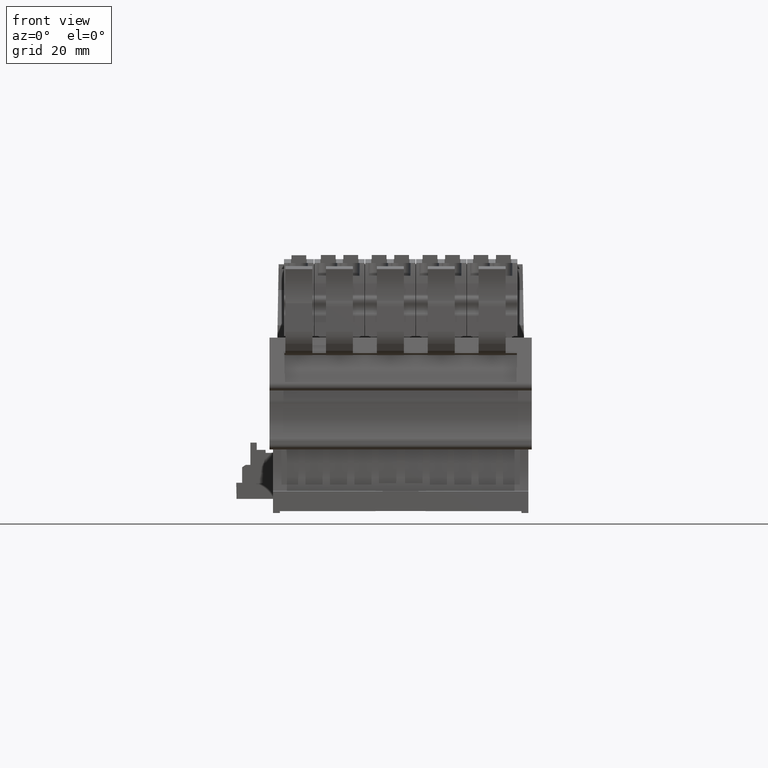
[diagram: clean part render]
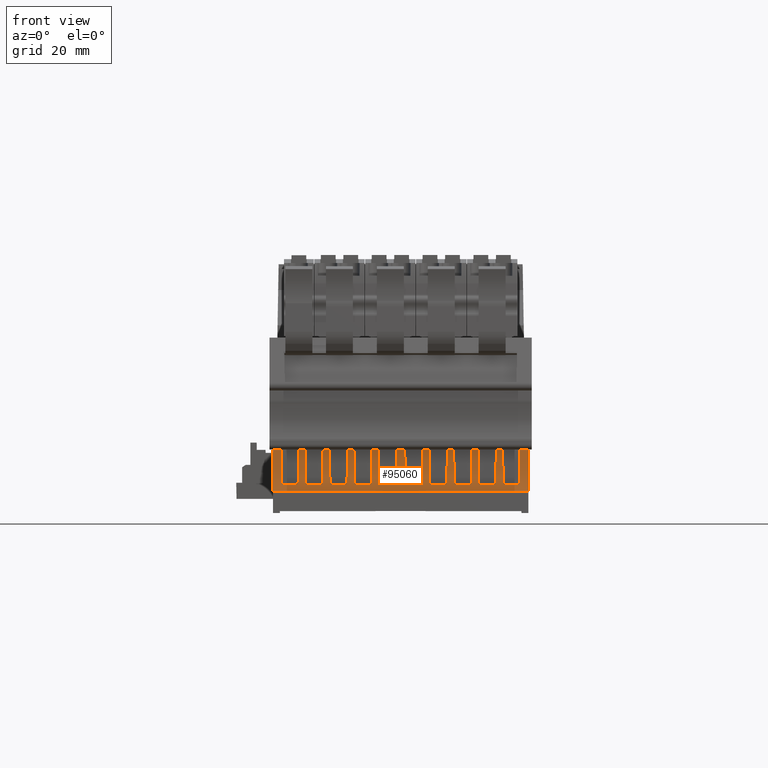
[diagram: same view with one face highlighted and labeled with its STEP entity id]
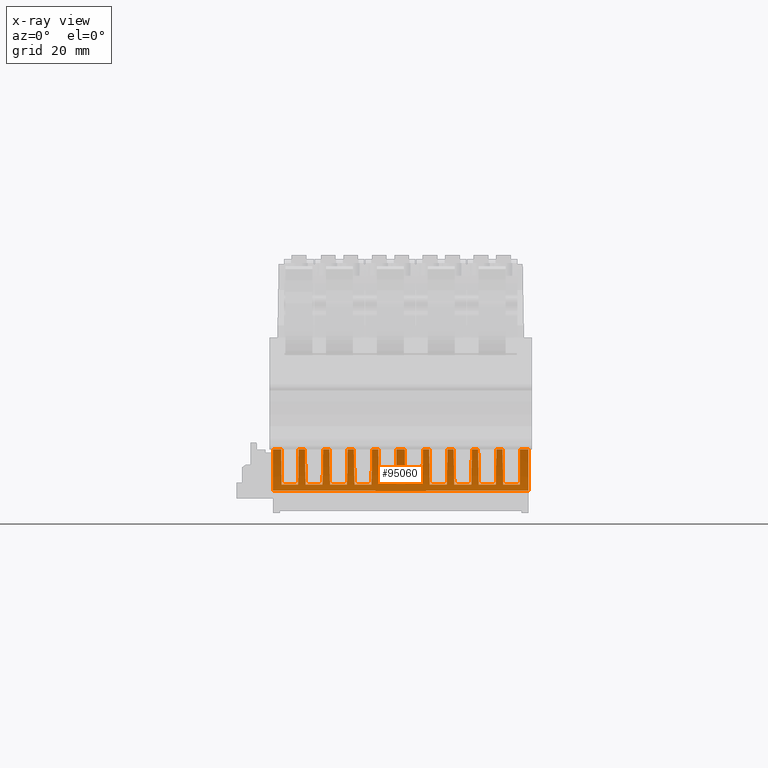
[diagram: x-ray of the same camera — body ghosted, the highlighted face saturated]
A machine part, front view. The second image highlights one B-rep face of the part: STEP entity #95060.
The next image is the same camera in x-ray: the body ghosted, the highlighted face saturated — about 0% of this face is hidden behind the body in this view.
In plain terms, the highlighted cylindrical surface (partial cylindrical patch) has radius 32 mm, axis along (1, 0, -0).
Its self-contained STEP definition (entity closure, byte-faithful):
#15140=CARTESIAN_POINT('',(-31.0056815975214,-4.78212808001097,
-81.0600023784956));
#15150=DIRECTION('',(4.13215179592955E-11,5.08621313383629E-12,1.));
#15160=VECTOR('',#15150,1.);
#15170=LINE('',#15140,#15160);
#15180=CARTESIAN_POINT('',(-31.0056815955159,-4.78212807977886,
-32.5367951448605));
#15190=VERTEX_POINT('',#15180);
#15200=CARTESIAN_POINT('',(-31.0056815953722,-4.78212807976404,
-29.0632048334256));
#15210=VERTEX_POINT('',#15200);
#15220=EDGE_CURVE('',#15190,#15210,#15170,.T.);
#89690=CARTESIAN_POINT('',(-31.0056815975214,-4.78212808001097,
-81.0600023784956));
#89700=DIRECTION('',(4.13215179592955E-11,5.08621313383629E-12,1.));
#89710=VECTOR('',#89700,1.);
#89720=LINE('',#89690,#89710);
#89730=CARTESIAN_POINT('',(-31.0056815957224,-4.78212807980713,
-37.5367951448609));
#89740=VERTEX_POINT('',#89730);
#89750=CARTESIAN_POINT('',(-31.0056815955789,-4.78212807978947,
-34.0632048567918));
#89760=VERTEX_POINT('',#89750);
#89770=EDGE_CURVE('',#89740,#89760,#89720,.T.);
#90160=CARTESIAN_POINT('',(-62.9898838756714,-5.78751581891615,
-34.0125851707667));
#90170=DIRECTION('',(0.00212691324287215,-0.0173223188554032,
0.999847695156382));
#90180=DIRECTION('',(-0.121850775704579,0.992394982841873,
0.0174524064378229));
#90190=AXIS2_PLACEMENT_3D('',#90160,#90170,#90180);
#90200=ELLIPSE('',#90190,32.0048744974053,32.);
#90210=CARTESIAN_POINT('',(-32.0405045112049,2.34488339377194,
-33.93752837186));
#90220=VERTEX_POINT('',#90210);
#90230=EDGE_CURVE('',#89760,#90220,#90200,.T.);
#90550=CARTESIAN_POINT('',(-62.9898838756125,-5.7875158189089,
-32.5874148354169));
#90560=DIRECTION('',(0.00212691338394611,-0.0173223188370466,
-0.9998476951564));
#90570=DIRECTION('',(-0.12185078852938,0.992394981267203,
-0.0174524064367958));
#90580=AXIS2_PLACEMENT_3D('',#90550,#90560,#90570);
#90590=ELLIPSE('',#90580,32.0048744974047,32.);
#90600=CARTESIAN_POINT('',(-32.0405045111522,2.34488339377843,
-32.6624716298074));
#90610=VERTEX_POINT('',#90600);
#90620=EDGE_CURVE('',#90610,#15190,#90590,.T.);
#91410=CARTESIAN_POINT('',(-62.9898838752573,-5.78751581886517,
-23.9899015353331));
#91420=DIRECTION('',(0.00106349718151837,-0.00866148922265242,
0.999961923064169));
#91430=DIRECTION('',(0.121864701707156,-0.992508358683199,
-0.00872653549865132));
#91440=AXIS2_PLACEMENT_3D('',#91410,#91420,#91430);
#91450=ELLIPSE('',#91440,32.0012185083437,32.);
#91460=CARTESIAN_POINT('',(-31.0165580327374,-4.48121012417101,
-24.0125913885144));
#91470=VERTEX_POINT('',#91460);
#91480=CARTESIAN_POINT('',(-32.0405045107923,2.34488339382273,
-23.9523759960644));
#91490=VERTEX_POINT('',#91480);
#91500=EDGE_CURVE('',#91470,#91490,#91450,.T.);
#91750=CARTESIAN_POINT('',(-62.9898838776155,-5.78751581915544,
-81.0600023771688));
#91760=DIRECTION('',(4.13215179592955E-11,5.08621313383629E-12,1.));
#91770=DIRECTION('',(-0.992546151641236,-0.121869343405852,
4.16333670855158E-11));
#91780=AXIS2_PLACEMENT_3D('',#91750,#91760,#91770);
#91790=CYLINDRICAL_SURFACE('',#91780,32.);
#91800=CARTESIAN_POINT('',(-62.9898838754357,-5.78751581888714,
-28.3080336530961));
#91810=DIRECTION('',(0.00106349716742528,-0.00866148921969684,
-0.99996192306421));
#91820=DIRECTION('',(-0.121864709627986,0.992508357710684,
-0.00872653549400025));
#91830=AXIS2_PLACEMENT_3D('',#91800,#91810,#91820);
#91840=ELLIPSE('',#91830,32.0012185083424,32.);
#91850=CARTESIAN_POINT('',(-30.9910717034457,-6.06323230697384,
-28.2716135048333));
#91860=VERTEX_POINT('',#91850);
#91870=CARTESIAN_POINT('',(-30.9911606698539,-6.07337104912647,
-28.2715257795027));
#91880=VERTEX_POINT('',#91870);
#91890=EDGE_CURVE('',#91860,#91880,#91840,.T.);
#91900=ORIENTED_EDGE('',*,*,#91890,.T.);
#91910=CARTESIAN_POINT('',(-30.9910717056271,-6.06323230725382,
-81.0600023784897));
#91920=DIRECTION('',(4.13215179592955E-11,5.08621313383629E-12,1.));
#91930=VECTOR('',#91920,1.);
#91940=LINE('',#91910,#91930);
#91950=CARTESIAN_POINT('',(-30.9910717043105,-6.06323230708028,
-49.1999999994663));
#91960=VERTEX_POINT('',#91950);
#91970=EDGE_CURVE('',#91960,#91860,#91940,.T.);
#91980=ORIENTED_EDGE('',*,*,#91970,.T.);
#91990=CARTESIAN_POINT('',(-62.989883876299,-5.7875158189934,
-49.199999999585));
#92000=DIRECTION('',(3.71422913355508E-12,4.00157385418018E-13,-1.));
#92010=DIRECTION('',(1.,0.,3.71422913355508E-12));
#92020=AXIS2_PLACEMENT_3D('',#91990,#92000,#92010);
#92030=CIRCLE('',#92020,32.);
#92040=CARTESIAN_POINT('',(-32.0405045118355,2.34488339369431,
-49.1999999994668));
#92050=VERTEX_POINT('',#92040);
#92060=EDGE_CURVE('',#92050,#91960,#92030,.T.);
#92070=ORIENTED_EDGE('',*,*,#92060,.T.);
#92080=CARTESIAN_POINT('',(-32.0405045131514,2.34488339352985,
-81.0600023784891));
#92090=DIRECTION('',(4.13215179592955E-11,5.08621313383629E-12,1.));
#92100=VECTOR('',#92090,1.);
#92110=LINE('',#92080,#92100);
#92120=CARTESIAN_POINT('',(-32.0405045117656,2.34488339370292,
-47.5083678764582));
#92130=VERTEX_POINT('',#92120);
#92140=EDGE_CURVE('',#92050,#92130,#92110,.T.);
#92150=ORIENTED_EDGE('',*,*,#92140,.F.);
#92160=CARTESIAN_POINT('',(-62.9898838762275,-5.7875158189846,
-47.4708423359889));
#92170=DIRECTION('',(-0.00106349714379756,0.00866148922672503,
0.999961923064174));
#92180=DIRECTION('',(-0.12186470686323,0.992508358050117,
-0.00872653549809655));
#92190=AXIS2_PLACEMENT_3D('',#92160,#92170,#92180);
#92200=ELLIPSE('',#92190,32.0012185083435,32.);
#92210=CARTESIAN_POINT('',(-31.0056815961317,-4.78212807986116,
-47.4455344196405));
#92220=VERTEX_POINT('',#92210);
#92230=EDGE_CURVE('',#92220,#92130,#92200,.T.);
#92240=ORIENTED_EDGE('',*,*,#92230,.T.);
#92250=CARTESIAN_POINT('',(-31.0056815975207,-4.78212808003174,
-81.0600023784956));
#92260=DIRECTION('',(4.13215179592955E-11,5.08621313383629E-12,1.));
#92270=VECTOR('',#92260,1.);
#92280=LINE('',#92250,#92270);
#92290=CARTESIAN_POINT('',(-31.0056815959919,-4.78212807984422,
-44.0632048330995));
#92300=VERTEX_POINT('',#92290);
#92310=EDGE_CURVE('',#92220,#92300,#92280,.T.);
#92320=ORIENTED_EDGE('',*,*,#92310,.F.);
#92330=CARTESIAN_POINT('',(-62.9898838760846,-5.78751581896701,
-44.0125851431205));
#92340=DIRECTION('',(-0.00212691336597967,0.0173223188397682,
-0.999847695156391));
#92350=DIRECTION('',(-0.12185078276106,0.992394981975455,
0.0174524064373075));
#92360=AXIS2_PLACEMENT_3D('',#92330,#92340,#92350);
#92370=ELLIPSE('',#92360,32.004874497405,32.);
#92380=CARTESIAN_POINT('',(-32.0405045116181,2.34488339372108,
-43.9375283481516));
#92390=VERTEX_POINT('',#92380);
#92400=EDGE_CURVE('',#92390,#92300,#92370,.T.);
#92410=ORIENTED_EDGE('',*,*,#92400,.T.);
#92420=CARTESIAN_POINT('',(-32.0405045115654,2.34488339372756,
-42.6624716060973));
#92430=VERTEX_POINT('',#92420);
#92440=EDGE_CURVE('',#92390,#92430,#92110,.T.);
#92450=ORIENTED_EDGE('',*,*,#92440,.F.);
#92460=CARTESIAN_POINT('',(-62.9898838760257,-5.78751581895977,
-42.5874148077689));
#92470=DIRECTION('',(-0.00212691326083858,0.0173223188526816,
0.999847695156391));
#92480=DIRECTION('',(-0.12185078147299,0.99239498213361,
-0.0174524064373112));
#92490=AXIS2_PLACEMENT_3D('',#92460,#92470,#92480);
#92500=ELLIPSE('',#92490,32.004874497405,32.);
#92510=CARTESIAN_POINT('',(-31.005681595929,-4.78212807983257,
-42.5367951211664));
#92520=VERTEX_POINT('',#92510);
#92530=EDGE_CURVE('',#92520,#92430,#92500,.T.);
#92540=ORIENTED_EDGE('',*,*,#92530,.T.);
#92550=CARTESIAN_POINT('',(-31.0056815975214,-4.78212808001097,
-81.0600023784956));
#92560=DIRECTION('',(4.13215179592955E-11,5.08621313383629E-12,1.));
#92570=VECTOR('',#92560,1.);
#92580=LINE('',#92550,#92570);
#92590=CARTESIAN_POINT('',(-31.0056815957856,-4.78212807981008,
-39.0632048567914));
#92600=VERTEX_POINT('',#92590);
#92610=EDGE_CURVE('',#92520,#92600,#92580,.T.);
#92620=ORIENTED_EDGE('',*,*,#92610,.F.);
#92630=CARTESIAN_POINT('',(-62.989883875878,-5.78751581894158,
-39.0125851707664));
#92640=DIRECTION('',(0.00212691324287215,-0.0173223188554032,
0.999847695156382));
#92650=DIRECTION('',(-0.121850775704579,0.992394982841873,
0.0174524064378229));
#92660=AXIS2_PLACEMENT_3D('',#92630,#92640,#92650);
#92670=ELLIPSE('',#92660,32.0048744974053,32.);
#92680=CARTESIAN_POINT('',(-32.0405045114115,2.34488339374651,
-38.9375283718597));
#92690=VERTEX_POINT('',#92680);
#92700=EDGE_CURVE('',#92600,#92690,#92670,.T.);
#92710=ORIENTED_EDGE('',*,*,#92700,.F.);
#92720=CARTESIAN_POINT('',(-32.0405045113588,2.34488339375299,
-37.6624716298077));
#92730=VERTEX_POINT('',#92720);
#92740=EDGE_CURVE('',#92690,#92730,#92110,.T.);
#92750=ORIENTED_EDGE('',*,*,#92740,.F.);
#92760=CARTESIAN_POINT('',(-62.9898838758191,-5.78751581893433,
-37.5874148354172));
#92770=DIRECTION('',(0.00212691338394611,-0.0173223188370466,
-0.9998476951564));
#92780=DIRECTION('',(-0.12185078852938,0.992394981267203,
-0.0174524064367958));
#92790=AXIS2_PLACEMENT_3D('',#92760,#92770,#92780);
#92800=ELLIPSE('',#92790,32.0048744974047,32.);
#92810=EDGE_CURVE('',#92730,#89740,#92800,.T.);
#92820=ORIENTED_EDGE('',*,*,#92810,.F.);
#92830=ORIENTED_EDGE('',*,*,#89770,.F.);
#92840=ORIENTED_EDGE('',*,*,#90230,.F.);
#92850=EDGE_CURVE('',#90220,#90610,#92110,.T.);
#92860=ORIENTED_EDGE('',*,*,#92850,.F.);
#92870=ORIENTED_EDGE('',*,*,#90620,.F.);
#92880=ORIENTED_EDGE('',*,*,#15220,.F.);
#92890=CARTESIAN_POINT('',(-62.9898838754648,-5.78751581889072,
-29.0125851438079));
#92900=DIRECTION('',(-0.00212691335474765,0.0173223188416946,
-0.999847695156382));
#92910=DIRECTION('',(-0.121850782113742,0.992394982054926,
0.0174524064378507));
#92920=AXIS2_PLACEMENT_3D('',#92890,#92900,#92910);
#92930=ELLIPSE('',#92920,32.0048744974054,32.);
#92940=CARTESIAN_POINT('',(-32.0405045109983,2.34488339379737,
-28.9375283484757));
#92950=VERTEX_POINT('',#92940);
#92960=EDGE_CURVE('',#92950,#15210,#92930,.T.);
#92970=ORIENTED_EDGE('',*,*,#92960,.T.);
#92980=CARTESIAN_POINT('',(-32.0405045109456,2.34488339380386,
-27.6624716027192));
#92990=VERTEX_POINT('',#92980);
#93000=EDGE_CURVE('',#92950,#92990,#92110,.T.);
#93010=ORIENTED_EDGE('',*,*,#93000,.F.);
#93020=CARTESIAN_POINT('',(-62.989883875406,-5.78751581888347,
-27.5874148043931));
#93030=DIRECTION('',(0.00212691326076219,-0.0173223188521065,
-0.999847695156401));
#93040=DIRECTION('',(-0.121850781472647,0.992394982133663,
-0.017452406436731));
#93050=AXIS2_PLACEMENT_3D('',#93020,#93030,#93040);
#93060=ELLIPSE('',#93050,32.0048744974047,32.);
#93070=CARTESIAN_POINT('',(-31.0165580328833,-4.48121012418768,
-27.5420316453549));
#93080=VERTEX_POINT('',#93070);
#93090=EDGE_CURVE('',#92990,#93080,#93060,.T.);
#93100=ORIENTED_EDGE('',*,*,#93090,.F.);
#93110=CARTESIAN_POINT('',(-31.0165580350954,-4.48121012444431,
-81.0600023784967));
#93120=DIRECTION('',(4.13215179592955E-11,5.08621313383629E-12,1.));
#93130=VECTOR('',#93120,1.);
#93140=LINE('',#93110,#93130);
#93150=EDGE_CURVE('',#93080,#91470,#93140,.T.);
#93160=ORIENTED_EDGE('',*,*,#93150,.F.);
#93170=ORIENTED_EDGE('',*,*,#91500,.F.);
#93180=CARTESIAN_POINT('',(-32.0405045107218,2.3448833938314,
-22.247623981893));
#93190=VERTEX_POINT('',#93180);
#93200=EDGE_CURVE('',#91490,#93190,#92110,.T.);
#93210=ORIENTED_EDGE('',*,*,#93200,.F.);
#93220=CARTESIAN_POINT('',(-62.9898838751837,-5.78751581885612,
-22.2100984432028));
#93230=DIRECTION('',(-0.00106349719948162,0.00866148921988788,
0.999961923064174));
#93240=DIRECTION('',(0.121864713244019,-0.992508357266655,
0.00872653549809655));
#93250=AXIS2_PLACEMENT_3D('',#93220,#93230,#93240);
#93260=ELLIPSE('',#93250,32.0012185083435,32.);
#93270=CARTESIAN_POINT('',(-31.016558032662,-4.48121012416172,
-22.1874085894435));
#93280=VERTEX_POINT('',#93270);
#93290=EDGE_CURVE('',#93280,#93190,#93260,.T.);
#93300=ORIENTED_EDGE('',*,*,#93290,.T.);
#93310=CARTESIAN_POINT('',(-31.0165580350954,-4.48121012444431,
-81.0600023784967));
#93320=DIRECTION('',(4.13215179592955E-11,5.08621313383629E-12,1.));
#93330=VECTOR('',#93320,1.);
#93340=LINE('',#93310,#93330);
#93350=CARTESIAN_POINT('',(-31.0165580325161,-4.48121012414377,
-18.6579683326035));
#93360=VERTEX_POINT('',#93350);
#93370=EDGE_CURVE('',#93280,#93360,#93340,.T.);
#93380=ORIENTED_EDGE('',*,*,#93370,.F.);
#93390=CARTESIAN_POINT('',(-62.9898838750351,-5.78751581883782,
-18.6125851741433));
#93400=DIRECTION('',(-0.00212691324279575,0.0173223188548281,
-0.999847695156392));
#93410=DIRECTION('',(-0.121850775704237,0.992394982841925,
0.0174524064372428));
#93420=AXIS2_PLACEMENT_3D('',#93390,#93400,#93410);
#93430=ELLIPSE('',#93420,32.004874497405,32.);
#93440=CARTESIAN_POINT('',(-32.0405045105685,2.34488339385027,
-18.5375283752389));
#93450=VERTEX_POINT('',#93440);
#93460=EDGE_CURVE('',#93450,#93360,#93430,.T.);
#93470=ORIENTED_EDGE('',*,*,#93460,.T.);
#93480=CARTESIAN_POINT('',(-32.0405045105158,2.34488339385675,
-17.2624716294826));
#93490=VERTEX_POINT('',#93480);
#93500=EDGE_CURVE('',#93450,#93490,#92110,.T.);
#93510=ORIENTED_EDGE('',*,*,#93500,.F.);
#93520=CARTESIAN_POINT('',(-62.9898838749761,-5.78751581883057,
-17.1874148347287));
#93530=DIRECTION('',(0.00212691337271409,-0.0173223188389731,
-0.99984769515639));
#93540=DIRECTION('',(-0.121850787882152,0.992394981346664,
-0.017452406437339));
#93550=AXIS2_PLACEMENT_3D('',#93520,#93530,#93540);
#93560=ELLIPSE('',#93550,32.0048744974051,32.);
#93570=CARTESIAN_POINT('',(-31.0056815948791,-4.78212807971203,
-17.1367951445333));
#93580=VERTEX_POINT('',#93570);
#93590=EDGE_CURVE('',#93490,#93580,#93560,.T.);
#93600=ORIENTED_EDGE('',*,*,#93590,.F.);
#93610=CARTESIAN_POINT('',(-31.0056815975216,-4.7821280800034,
-81.0600023784956));
#93620=DIRECTION('',(4.13215179592955E-11,5.08621313383629E-12,1.));
#93630=VECTOR('',#93620,1.);
#93640=LINE('',#93610,#93630);
#93650=CARTESIAN_POINT('',(-31.0056815947357,-4.78212807969121,
-13.6632048567923));
#93660=VERTEX_POINT('',#93650);
#93670=EDGE_CURVE('',#93580,#93660,#93640,.T.);
#93680=ORIENTED_EDGE('',*,*,#93670,.F.);
#93690=CARTESIAN_POINT('',(-62.9898838748285,-5.78751581881239,
-13.6125851707671));
#93700=DIRECTION('',(0.00212691324287215,-0.0173223188554032,
0.999847695156382));
#93710=DIRECTION('',(-0.121850775704579,0.992394982841873,
0.0174524064378229));
#93720=AXIS2_PLACEMENT_3D('',#93690,#93700,#93710);
#93730=ELLIPSE('',#93720,32.0048744974053,32.);
#93740=CARTESIAN_POINT('',(-32.0405045103619,2.3448833938757,
-13.5375283718604));
#93750=VERTEX_POINT('',#93740);
#93760=EDGE_CURVE('',#93660,#93750,#93730,.T.);
#93770=ORIENTED_EDGE('',*,*,#93760,.F.);
#93780=CARTESIAN_POINT('',(-32.0405045103092,2.34488339388218,
-12.2624716298071));
#93790=VERTEX_POINT('',#93780);
#93800=EDGE_CURVE('',#93750,#93790,#92110,.T.);
#93810=ORIENTED_EDGE('',*,*,#93800,.F.);
#93820=CARTESIAN_POINT('',(-62.9898838747695,-5.78751581880514,
-12.1874148354165));
#93830=DIRECTION('',(0.00212691338394611,-0.0173223188370466,
-0.9998476951564));
#93840=DIRECTION('',(-0.12185078852938,0.992394981267203,
-0.0174524064367958));
#93850=AXIS2_PLACEMENT_3D('',#93820,#93830,#93840);
#93860=ELLIPSE('',#93850,32.0048744974047,32.);
#93870=CARTESIAN_POINT('',(-31.0056815946726,-4.78212807968344,
-12.13679514486));
#93880=VERTEX_POINT('',#93870);
#93890=EDGE_CURVE('',#93790,#93880,#93860,.T.);
#93900=ORIENTED_EDGE('',*,*,#93890,.F.);
#93910=CARTESIAN_POINT('',(-31.0056815975216,-4.7821280800034,
-81.0600023784956));
#93920=DIRECTION('',(4.13215179592955E-11,5.08621313383629E-12,1.));
#93930=VECTOR('',#93920,1.);
#93940=LINE('',#93910,#93930);
#93950=CARTESIAN_POINT('',(-31.0056815945291,-4.78212807966578,
-8.66320485679265));
#93960=VERTEX_POINT('',#93950);
#93970=EDGE_CURVE('',#93880,#93960,#93940,.T.);
#93980=ORIENTED_EDGE('',*,*,#93970,.F.);
#93990=CARTESIAN_POINT('',(-62.9898838746219,-5.78751581878696,
-8.61258517076743));
#94000=DIRECTION('',(0.00212691324287215,-0.0173223188554032,
0.999847695156382));
#94010=DIRECTION('',(-0.121850775704579,0.992394982841873,
0.0174524064378229));
#94020=AXIS2_PLACEMENT_3D('',#93990,#94000,#94010);
#94030=ELLIPSE('',#94020,32.0048744974053,32.);
#94040=CARTESIAN_POINT('',(-32.0405045101553,2.34488339390113,
-8.53752837186076));
#94050=VERTEX_POINT('',#94040);
#94060=EDGE_CURVE('',#93960,#94050,#94030,.T.);
#94070=ORIENTED_EDGE('',*,*,#94060,.F.);
#94080=CARTESIAN_POINT('',(-32.0405045101026,2.34488339390762,
-7.26247162980674));
#94090=VERTEX_POINT('',#94080);
#94100=EDGE_CURVE('',#94050,#94090,#92110,.T.);
#94110=ORIENTED_EDGE('',*,*,#94100,.F.);
#94120=CARTESIAN_POINT('',(-62.9898838745629,-5.78751581877971,
-7.18741483541619));
#94130=DIRECTION('',(0.00212691338394611,-0.0173223188370466,
-0.9998476951564));
#94140=DIRECTION('',(-0.12185078852938,0.992394981267203,
-0.0174524064367958));
#94150=AXIS2_PLACEMENT_3D('',#94120,#94130,#94140);
#94160=ELLIPSE('',#94150,32.0048744974047,32.);
#94170=CARTESIAN_POINT('',(-31.005681594466,-4.78212807965801,
-7.13679514485968));
#94180=VERTEX_POINT('',#94170);
#94190=EDGE_CURVE('',#94090,#94180,#94160,.T.);
#94200=ORIENTED_EDGE('',*,*,#94190,.F.);
#94210=CARTESIAN_POINT('',(-31.0056815975216,-4.7821280800034,
-81.0600023784956));
#94220=DIRECTION('',(4.13215179592955E-11,5.08621313383629E-12,1.));
#94230=VECTOR('',#94220,1.);
#94240=LINE('',#94210,#94230);
#94250=CARTESIAN_POINT('',(-31.0056815943225,-4.78212807964034,
-3.66320485679282));
#94260=VERTEX_POINT('',#94250);
#94270=EDGE_CURVE('',#94180,#94260,#94240,.T.);
#94280=ORIENTED_EDGE('',*,*,#94270,.F.);
#94290=CARTESIAN_POINT('',(-62.9898838744153,-5.78751581876153,
-3.61258517076741));
#94300=DIRECTION('',(0.00212691324287215,-0.0173223188554032,
0.999847695156382));
#94310=DIRECTION('',(-0.121850775704579,0.992394982841873,
0.0174524064378229));
#94320=AXIS2_PLACEMENT_3D('',#94290,#94300,#94310);
#94330=ELLIPSE('',#94320,32.0048744974053,32.);
#94340=CARTESIAN_POINT('',(-32.0405045099487,2.34488339392656,
-3.53752837186073));
#94350=VERTEX_POINT('',#94340);
#94360=EDGE_CURVE('',#94260,#94350,#94330,.T.);
#94370=ORIENTED_EDGE('',*,*,#94360,.F.);
#94380=CARTESIAN_POINT('',(-32.040504509896,2.34488339393305,
-2.26247162980675));
#94390=VERTEX_POINT('',#94380);
#94400=EDGE_CURVE('',#94350,#94390,#92110,.T.);
#94410=ORIENTED_EDGE('',*,*,#94400,.F.);
#94420=CARTESIAN_POINT('',(-62.9898838743563,-5.78751581875428,
-2.18741483541621));
#94430=DIRECTION('',(0.00212691338394611,-0.0173223188370466,
-0.9998476951564));
#94440=DIRECTION('',(-0.12185078852938,0.992394981267203,
-0.0174524064367958));
#94450=AXIS2_PLACEMENT_3D('',#94420,#94430,#94440);
#94460=ELLIPSE('',#94450,32.0048744974047,32.);
#94470=CARTESIAN_POINT('',(-31.0056815942595,-4.78212807962944,
-2.13679514485956));
#94480=VERTEX_POINT('',#94470);
#94490=EDGE_CURVE('',#94390,#94480,#94460,.T.);
#94500=ORIENTED_EDGE('',*,*,#94490,.F.);
#94510=CARTESIAN_POINT('',(-31.0056815975217,-4.78212808000027,
-81.0600023784956));
#94520=DIRECTION('',(4.13215179592955E-11,5.08621313383629E-12,1.));
#94530=VECTOR('',#94520,1.);
#94540=LINE('',#94510,#94530);
#94550=CARTESIAN_POINT('',(-31.0056815941198,-4.78212807961224,
1.2455344430351));
#94560=VERTEX_POINT('',#94550);
#94570=EDGE_CURVE('',#94480,#94560,#94540,.T.);
#94580=ORIENTED_EDGE('',*,*,#94570,.F.);
#94590=CARTESIAN_POINT('',(-62.9898838742135,-5.78751581873669,
1.27084235987335));
#94600=DIRECTION('',(-0.00106349715910504,0.00866148922641938,
-0.99996192306416));
#94610=DIRECTION('',(-0.121864699125227,0.992508359000211,
0.0087265354996587));
#94620=AXIS2_PLACEMENT_3D('',#94590,#94600,#94610);
#94630=ELLIPSE('',#94620,32.0012185083439,32.);
#94640=CARTESIAN_POINT('',(-32.0405045097485,2.34488339395121,
1.30836789986639));
#94650=VERTEX_POINT('',#94640);
#94660=EDGE_CURVE('',#94650,#94560,#94630,.T.);
#94670=ORIENTED_EDGE('',*,*,#94660,.T.);
#94680=CARTESIAN_POINT('',(-32.0405045096786,2.34488339395981,
3.00000000010895));
#94690=VERTEX_POINT('',#94680);
#94700=EDGE_CURVE('',#94650,#94690,#92110,.T.);
#94710=ORIENTED_EDGE('',*,*,#94700,.F.);
#94720=CARTESIAN_POINT('',(-62.989883874142,-5.7875158187279,
2.99999999999075));
#94730=DIRECTION('',(-3.71422913355508E-12,-4.00157385418018E-13,1.));
#94740=DIRECTION('',(-1.,0.,-3.71422913355508E-12));
#94750=AXIS2_PLACEMENT_3D('',#94720,#94730,#94740);
#94760=CIRCLE('',#94750,32.);
#94770=CARTESIAN_POINT('',(-30.9910717021536,-6.06323230681478,
3.00000000010949));
#94780=VERTEX_POINT('',#94770);
#94790=EDGE_CURVE('',#94780,#94690,#94760,.T.);
#94800=ORIENTED_EDGE('',*,*,#94790,.T.);
#94810=CARTESIAN_POINT('',(-30.9910717056269,-6.0632323072308,
-81.0600023784897));
#94820=DIRECTION('',(4.13215179592955E-11,5.08621313383629E-12,1.));
#94830=VECTOR('',#94820,1.);
#94840=LINE('',#94810,#94830);
#94850=CARTESIAN_POINT('',(-30.9910717030183,-6.06323230692123,
-17.9283864495942));
#94860=VERTEX_POINT('',#94850);
#94870=EDGE_CURVE('',#94860,#94780,#94840,.T.);
#94880=ORIENTED_EDGE('',*,*,#94870,.T.);
#94890=CARTESIAN_POINT('',(-62.9898838750053,-5.78751581883416,
-17.8919663027137));
#94900=DIRECTION('',(0.00106349712410605,-0.00866148923382883,
0.999961923064133));
#94910=DIRECTION('',(-0.121864695071575,0.992508359497909,
0.00872653550274762));
#94920=AXIS2_PLACEMENT_3D('',#94890,#94900,#94910);
#94930=ELLIPSE('',#94920,32.0012185083448,32.);
#94940=CARTESIAN_POINT('',(-30.9911606694265,-6.07337104907386,
-17.928474174925));
#94950=VERTEX_POINT('',#94940);
#94960=EDGE_CURVE('',#94950,#94860,#94930,.T.);
#94970=ORIENTED_EDGE('',*,*,#94960,.T.);
#94980=CARTESIAN_POINT('',(-30.9911606720351,-6.07337104939061,
-81.0600023784896));
#94990=DIRECTION('',(4.13215179592955E-11,5.08621313383629E-12,1.));
#95000=VECTOR('',#94990,1.);
#95010=LINE('',#94980,#95000);
#95020=EDGE_CURVE('',#91880,#94950,#95010,.T.);
#95030=ORIENTED_EDGE('',*,*,#95020,.T.);
#95040=EDGE_LOOP('',(#95030,#94970,#94880,#94800,#94710,#94670,#94580,
#94500,#94410,#94370,#94280,#94200,#94110,#94070,#93980,#93900,#93810,
#93770,#93680,#93600,#93510,#93470,#93380,#93300,#93210,#93170,#93160,
#93100,#93010,#92970,#92880,#92870,#92860,#92840,#92830,#92820,#92750,
#92710,#92620,#92540,#92450,#92410,#92320,#92240,#92150,#92070,#91980,
#91900));
#95050=FACE_OUTER_BOUND('',#95040,.T.);
#95060=ADVANCED_FACE('',(#95050),#91790,.F.);